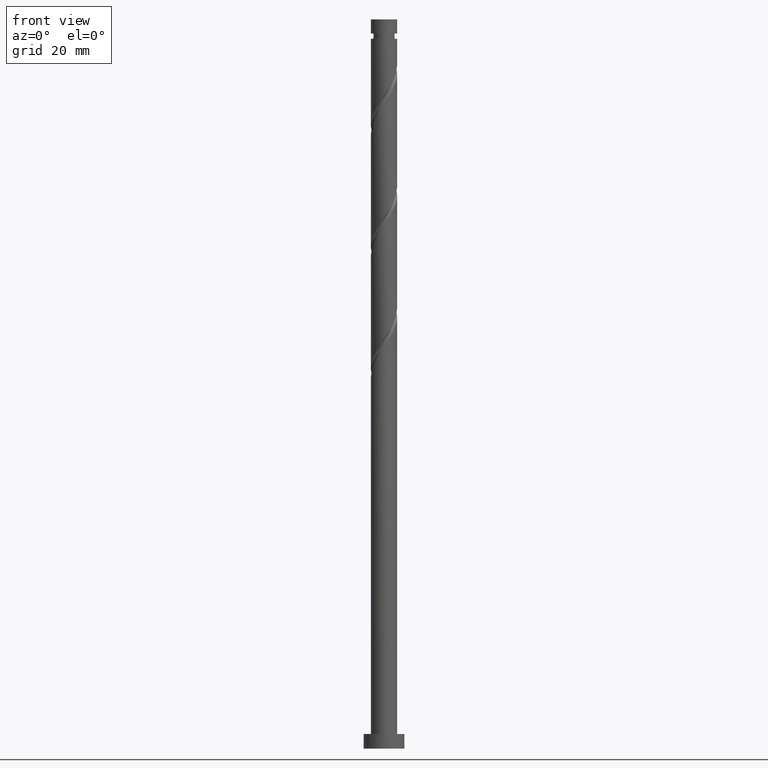
[diagram: clean part render]
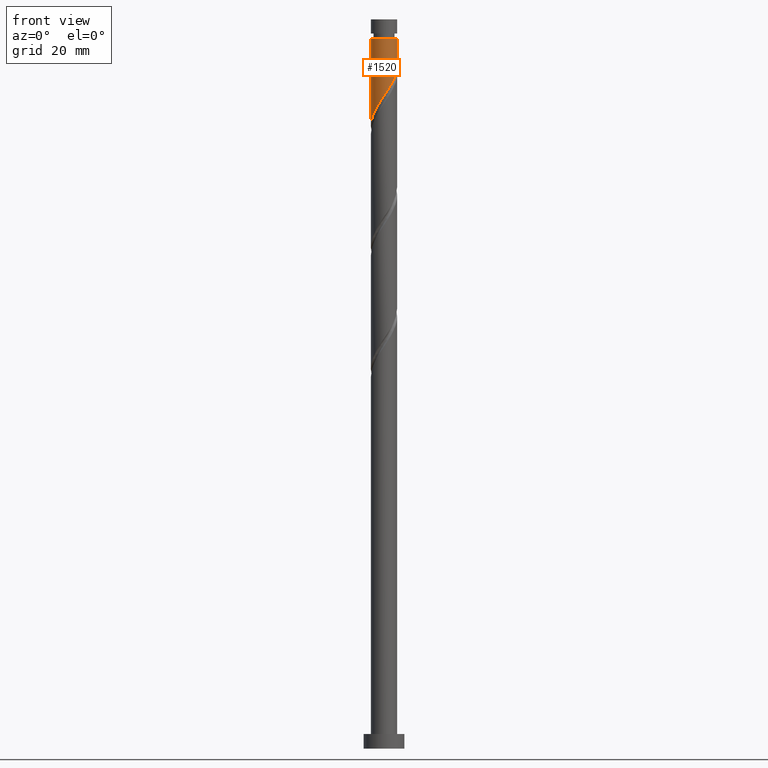
[diagram: same view with one face highlighted and labeled with its STEP entity id]
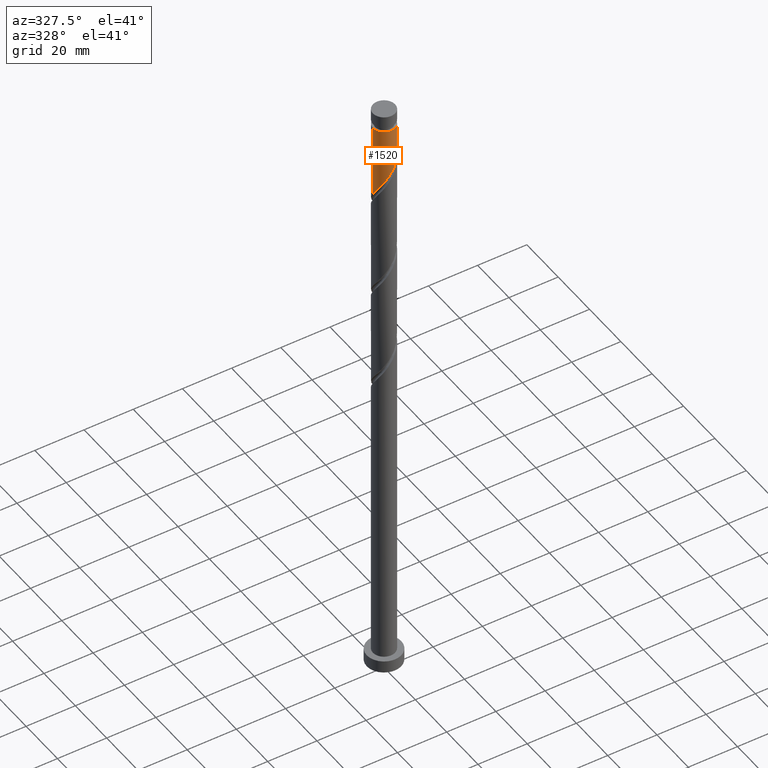
[diagram: same view with one face highlighted and labeled with its STEP entity id]
A machine part, front view. The second image highlights one B-rep face of the part: STEP entity #1520.
A second angle (auxiliary view) of the same face is appended — the face is thin or edge-on in the first view.
In plain terms, the highlighted cylindrical surface (edge-blend (fillet) strip) has radius 4.5 mm, axis along (-0, -0, -1).
Its self-contained STEP definition (entity closure, byte-faithful):
#14 = AXIS2_PLACEMENT_3D ( 'NONE', #1659, #1517, #1535 ) ;
#34 = VERTEX_POINT ( 'NONE', #709 ) ;
#60 = CARTESIAN_POINT ( 'NONE',  ( 4.500000000000000000, -1.316122590929233677E-15, 234.2677339071977656 ) ) ;
#131 = CARTESIAN_POINT ( 'NONE',  ( 2.254088010969333311, -3.894751242223862153, 227.3308376723316258 ) ) ;
#163 = CARTESIAN_POINT ( 'NONE',  ( 0.000000000000000000, 0.000000000000000000, 250.0000000000000000 ) ) ;
#179 = CARTESIAN_POINT ( 'NONE',  ( 4.500000000000000888, 5.510910596163089556E-16, 250.0000000000000000 ) ) ;
#203 = CARTESIAN_POINT ( 'NONE',  ( 3.805876963273137292, -2.401104025323944846, 230.5359658774598017 ) ) ;
#231 = CARTESIAN_POINT ( 'NONE',  ( -1.430959639406130135, -4.301267986894750983, 221.7218633133572041 ) ) ;
#239 = CARTESIAN_POINT ( 'NONE',  ( -3.265950737858744013, -3.143583554253785994, 218.5167351082290281 ) ) ;
#249 = CARTESIAN_POINT ( 'NONE',  ( -4.500000000000000000, -0.3656539734167050248, 213.9741013112127632 ) ) ;
#250 = LINE ( 'NONE', #1798, #604 ) ;
#374 = CARTESIAN_POINT ( 'NONE',  ( -0.8954886933959599338, -4.409999999999998366, 222.5231453646393334 ) ) ;
#383 = DIRECTION ( 'NONE',  ( -0.000000000000000000, -0.000000000000000000, -1.000000000000000000 ) ) ;
#395 = DIRECTION ( 'NONE',  ( -1.000000000000000000, 0.000000000000000000, 0.000000000000000000 ) ) ;
#415 = CYLINDRICAL_SURFACE ( 'NONE', #1211, 4.500000000000000888 ) ;
#421 = VECTOR ( 'NONE', #1295, 1000.000000000000000 ) ;
#426 = VERTEX_POINT ( 'NONE', #1024 ) ;
#508 = ORIENTED_EDGE ( 'NONE', *, *, #1688, .F. ) ;
#522 = EDGE_LOOP ( 'NONE', ( #508, #666, #525, #1296 ) ) ;
#525 = ORIENTED_EDGE ( 'NONE', *, *, #1819, .T. ) ;
#604 = VECTOR ( 'NONE', #1522, 1000.000000000000000 ) ;
#612 = CARTESIAN_POINT ( 'NONE',  ( 4.500000000000000000, -1.316122590929233677E-15, 234.2677339071977656 ) ) ;
#621 = CARTESIAN_POINT ( 'NONE',  ( 4.500000000000000000, -0.1789790865154720356, 234.0035629915648201 ) ) ;
#649 = CARTESIAN_POINT ( 'NONE',  ( -0.3600177473857912869, -4.518732013105247525, 223.3244274159212921 ) ) ;
#666 = ORIENTED_EDGE ( 'NONE', *, *, #1245, .T. ) ;
#709 = CARTESIAN_POINT ( 'NONE',  ( -4.499999999999983125, 0.000000000000000000, 243.3564786979726193 ) ) ;
#728 = EDGE_CURVE ( 'NONE', #1114, #1224, #852, .T. ) ;
#764 = CIRCLE ( 'NONE', #14, 4.499999999999983125 ) ;
#785 = CARTESIAN_POINT ( 'NONE',  ( 0.1859146600577747388, -4.496157886370940382, 224.1257094672033361 ) ) ;
#805 = CARTESIAN_POINT ( 'NONE',  ( -4.500000000000000000, -5.832816027981831026E-16, 213.4344005738644796 ) ) ;
#852 =( BOUNDED_CURVE ( )  B_SPLINE_CURVE ( 2, ( #60, #621, #1038, #1600, #898, #1459, #203, #1065, #1629, #1087, #131, #918, #1796, #935, #785, #649, #374, #231, #1649, #955, #1783, #239, #1365, #1518, #1080, #1661, #1508, #249, #805 ),
 .UNSPECIFIED., .F., .T. ) 
 B_SPLINE_CURVE_WITH_KNOTS ( ( 3, 2, 2, 2, 2, 2, 2, 2, 2, 2, 2, 2, 2, 2, 3 ),
 ( 0.3045271625973834939, 0.3076923076923077094, 0.3173076923076922906, 0.3269230769230769273, 0.3365384615384615641, 0.3461538461538461453, 0.3557692307692307820, 0.3653846153846153633, 0.3750000000000000000, 0.3846153846153846367, 0.3942307692307692180, 0.4038461538461538547, 0.4134615384615384359, 0.4230769230769230727, 0.4295271625973832719 ),
 .UNSPECIFIED. ) 
 CURVE ( )  GEOMETRIC_REPRESENTATION_ITEM ( )  RATIONAL_B_SPLINE_CURVE ( ( 0.9061636035682795187, 0.9069090390690681680, 0.9090909090909243817, 0.9024626128164281447, 0.9090909090909243817, 0.9024626128164281447, 0.9090909090909243817, 0.9024626128164281447, 0.9090909090909243817, 0.9024626128164281447, 0.9090909090909243817, 0.9024626128164281447, 0.9090909090909243817, 0.9024626128164281447, 0.9090909090909243817, 0.9024626128164281447, 0.9090909090909243817, 0.9024626128164281447, 0.9090909090909243817, 0.9024626128164281447, 0.9090909090909243817, 0.9024626128164281447, 0.9090909090909243817, 0.9024626128164281447, 0.9090909090909243817, 0.9024626128164281447, 0.9090909090909243817, 0.9046444828382846914, 0.9061636035682794077 ) ) 
 REPRESENTATION_ITEM ( '' )  );
#898 = CARTESIAN_POINT ( 'NONE',  ( 4.269906900464292221, -1.420526332514617573, 232.1385299800239466 ) ) ;
#918 = CARTESIAN_POINT ( 'NONE',  ( 1.781179590981150751, -4.168447078873279033, 226.5295556210495249 ) ) ;
#935 = CARTESIAN_POINT ( 'NONE',  ( 0.7318470675013408755, -4.473583759636633239, 224.9269915184854085 ) ) ;
#954 = CARTESIAN_POINT ( 'NONE',  ( -4.500000000000000000, -5.832816027981831026E-16, 213.4344005738644796 ) ) ;
#955 = CARTESIAN_POINT ( 'NONE',  ( -2.418739358510839654, -3.833829899758923521, 220.1192992107930593 ) ) ;
#1024 = CARTESIAN_POINT ( 'NONE',  ( 4.499999999999983125, 5.510910596163078709E-16, 243.3564786979726193 ) ) ;
#1038 = CARTESIAN_POINT ( 'NONE',  ( 4.485785369080544704, -0.3573928126626689794, 233.7410940825880061 ) ) ;
#1065 = CARTESIAN_POINT ( 'NONE',  ( 3.514330150595349256, -2.863221154104484079, 229.7346838261776725 ) ) ;
#1080 = CARTESIAN_POINT ( 'NONE',  ( -4.138054406405614394, -1.768192786329330968, 216.1128889543828677 ) ) ;
#1087 = CARTESIAN_POINT ( 'NONE',  ( 2.726996430957518314, -3.621055405574443942, 228.1321197236136129 ) ) ;
#1114 = VERTEX_POINT ( 'NONE', #612 ) ;
#1143 = LINE ( 'NONE', #179, #421 ) ;
#1211 = AXIS2_PLACEMENT_3D ( 'NONE', #163, #383, #395 ) ;
#1224 = VERTEX_POINT ( 'NONE', #954 ) ;
#1245 = EDGE_CURVE ( 'NONE', #426, #34, #764, .T. ) ;
#1295 = DIRECTION ( 'NONE',  ( -0.000000000000000000, -0.000000000000000000, -1.000000000000000000 ) ) ;
#1296 = ORIENTED_EDGE ( 'NONE', *, *, #728, .F. ) ;
#1365 = CARTESIAN_POINT ( 'NONE',  ( -3.594653834714478524, -2.707113556645249997, 217.7154530569469841 ) ) ;
#1459 = CARTESIAN_POINT ( 'NONE',  ( 4.097423775950922220, -1.938986896543404059, 231.3372479287417605 ) ) ;
#1508 = CARTESIAN_POINT ( 'NONE',  ( -4.440966297212221470, -0.7265110783912198666, 214.5103248518187513 ) ) ;
#1517 = DIRECTION ( 'NONE',  ( -0.000000000000000000, -0.000000000000000000, -1.000000000000000000 ) ) ;
#1518 = CARTESIAN_POINT ( 'NONE',  ( -3.923356931570212591, -2.270643559036713111, 216.9141710056648833 ) ) ;
#1520 = ADVANCED_FACE ( 'NONE', ( #1680 ), #415, .T. ) ;
#1522 = DIRECTION ( 'NONE',  ( -0.000000000000000000, -0.000000000000000000, -1.000000000000000000 ) ) ;
#1535 = DIRECTION ( 'NONE',  ( -1.000000000000000000, 0.000000000000000000, 0.000000000000000000 ) ) ;
#1600 = CARTESIAN_POINT ( 'NONE',  ( 4.442390024977660445, -0.9020657684858259806, 232.9398120313059621 ) ) ;
#1629 = CARTESIAN_POINT ( 'NONE',  ( 3.120663290776435783, -3.242138279839463344, 228.9334017748956853 ) ) ;
#1649 = CARTESIAN_POINT ( 'NONE',  ( -1.924849498958485006, -4.067548943326837474, 220.9205812620751317 ) ) ;
#1659 = CARTESIAN_POINT ( 'NONE',  ( 0.000000000000000000, 0.000000000000000000, 243.3564786979726193 ) ) ;
#1661 = CARTESIAN_POINT ( 'NONE',  ( -4.352751881241013976, -1.265742013621946827, 215.3116069031007385 ) ) ;
#1680 = FACE_OUTER_BOUND ( 'NONE', #522, .T. ) ;
#1688 = EDGE_CURVE ( 'NONE', #426, #1114, #1143, .T. ) ;
#1783 = CARTESIAN_POINT ( 'NONE',  ( -2.842345048184791612, -3.488706727006355202, 219.3180171595111005 ) ) ;
#1796 = CARTESIAN_POINT ( 'NONE',  ( 1.256513329241246701, -4.321015419254954359, 225.7282735697675093 ) ) ;
#1798 = CARTESIAN_POINT ( 'NONE',  ( -4.500000000000000888, 0.000000000000000000, 250.0000000000000000 ) ) ;
#1819 = EDGE_CURVE ( 'NONE', #34, #1224, #250, .T. ) ;